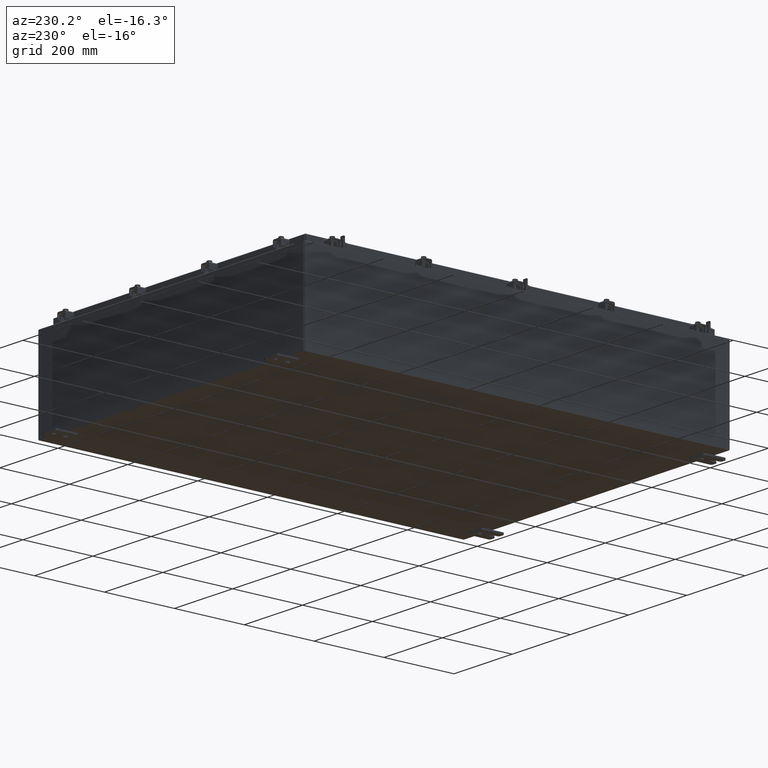
[diagram: clean part render]
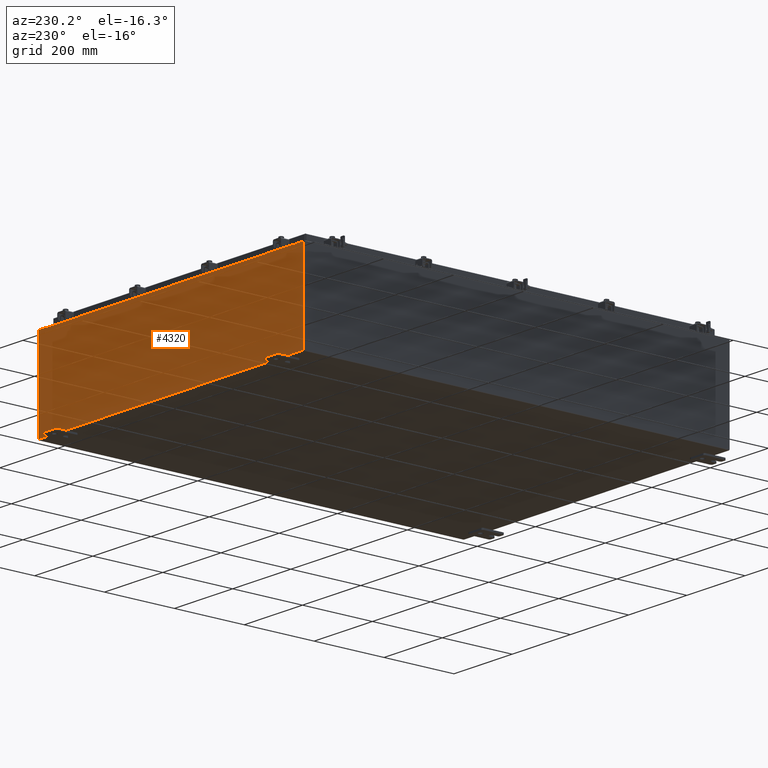
[diagram: same view with one face highlighted and labeled with its STEP entity id]
A machine part, auxiliary view. The second image highlights one B-rep face of the part: STEP entity #4320.
In plain terms, the highlighted planar face has unit normal (0, -1, 0).
Its self-contained STEP definition (entity closure, byte-faithful):
#90 = VERTEX_POINT ( 'NONE', #5222 ) ;
#235 = EDGE_LOOP ( 'NONE', ( #10161, #15801, #6835, #20614, #26888, #19884, #23600, #25094, #22514, #10881, #14825, #19794 ) ) ;
#618 = VECTOR ( 'NONE', #26644, 39.37007874015748100 ) ;
#906 = PLANE ( 'NONE',  #1491 ) ;
#1267 = LINE ( 'NONE', #9613, #618 ) ;
#1491 = AXIS2_PLACEMENT_3D ( 'NONE', #7310, #26489, #13730 ) ;
#1531 = CARTESIAN_POINT ( 'NONE',  ( -16.65587500000000200, 0.0000000000000000000, 4.874950000000000100 ) ) ;
#1675 = CARTESIAN_POINT ( 'NONE',  ( 17.92530000000000000, 0.0000000000000000000, 4.925300000000000000 ) ) ;
#1688 = DIRECTION ( 'NONE',  ( -0.0000000000000000000, 1.000000000000000000, -0.0000000000000000000 ) ) ;
#1728 = VERTEX_POINT ( 'NONE', #18785 ) ;
#1968 = VECTOR ( 'NONE', #12387, 39.37007874015748100 ) ;
#2018 = LINE ( 'NONE', #13625, #24023 ) ;
#2198 = CARTESIAN_POINT ( 'NONE',  ( -16.63720000000000400, -7.171100983368691200E-016, 4.912300000000000100 ) ) ;
#2223 = CARTESIAN_POINT ( 'NONE',  ( -17.92530000000000000, 0.0000000000000000000, 4.925300000000000000 ) ) ;
#2234 = CARTESIAN_POINT ( 'NONE',  ( 16.63720000000000400, 0.0000000000000000000, 0.0000000000000000000 ) ) ;
#2359 = VECTOR ( 'NONE', #19620, 39.37007874015748100 ) ;
#2671 = CARTESIAN_POINT ( 'NONE',  ( -17.92530000000000000, 0.0000000000000000000, 4.925300000000000000 ) ) ;
#3654 = DIRECTION ( 'NONE',  ( 0.0000000000000000000, 0.0000000000000000000, -1.000000000000000000 ) ) ;
#3800 = VERTEX_POINT ( 'NONE', #20738 ) ;
#3846 = LINE ( 'NONE', #24524, #25863 ) ;
#3941 = CIRCLE ( 'NONE', #8643, 0.01867499999999949400 ) ;
#4019 = EDGE_CURVE ( 'NONE', #27526, #12675, #18448, .T. ) ;
#4320 = ADVANCED_FACE ( 'NONE', ( #27420 ), #906, .F. ) ;
#4369 = DIRECTION ( 'NONE',  ( 0.0000000000000000000, 0.0000000000000000000, 1.000000000000000000 ) ) ;
#4487 = CARTESIAN_POINT ( 'NONE',  ( 16.67455000000000000, 0.0000000000000000000, 4.874950000000000100 ) ) ;
#5222 = CARTESIAN_POINT ( 'NONE',  ( 17.92530000000000000, 0.0000000000000000000, -4.925300000000000000 ) ) ;
#5306 = EDGE_CURVE ( 'NONE', #10961, #1728, #26367, .T. ) ;
#6811 = CARTESIAN_POINT ( 'NONE',  ( -16.63720000000000400, -0.0000000000000000000, 4.874950000000000100 ) ) ;
#6835 = ORIENTED_EDGE ( 'NONE', *, *, #21192, .F. ) ;
#7079 = CARTESIAN_POINT ( 'NONE',  ( -17.92530000000000000, 0.0000000000000000000, -4.925300000000000000 ) ) ;
#7258 = EDGE_CURVE ( 'NONE', #10017, #15563, #25839, .T. ) ;
#7310 = CARTESIAN_POINT ( 'NONE',  ( 0.0000000000000000000, 0.0000000000000000000, 0.0000000000000000000 ) ) ;
#7657 = EDGE_CURVE ( 'NONE', #9957, #10017, #17140, .T. ) ;
#7842 = VECTOR ( 'NONE', #21999, 39.37007874015748100 ) ;
#8298 = LINE ( 'NONE', #1675, #1968 ) ;
#8643 = AXIS2_PLACEMENT_3D ( 'NONE', #1531, #16415, #3654 ) ;
#9217 = VERTEX_POINT ( 'NONE', #20790 ) ;
#9613 = CARTESIAN_POINT ( 'NONE',  ( -16.63720000000000400, -0.0000000000000000000, 0.0000000000000000000 ) ) ;
#9957 = VERTEX_POINT ( 'NONE', #19437 ) ;
#10003 = EDGE_CURVE ( 'NONE', #9217, #15563, #24369, .T. ) ;
#10017 = VERTEX_POINT ( 'NONE', #2671 ) ;
#10161 = ORIENTED_EDGE ( 'NONE', *, *, #10003, .F. ) ;
#10613 = CARTESIAN_POINT ( 'NONE',  ( -16.63720000000000400, -7.171100983368691200E-016, 4.912300000000000100 ) ) ;
#10881 = ORIENTED_EDGE ( 'NONE', *, *, #13703, .T. ) ;
#10961 = VERTEX_POINT ( 'NONE', #4487 ) ;
#11118 = CARTESIAN_POINT ( 'NONE',  ( -17.92530000000000000, 0.0000000000000000000, 4.925300000000000000 ) ) ;
#11383 = EDGE_CURVE ( 'NONE', #3800, #90, #8298, .T. ) ;
#11754 = VERTEX_POINT ( 'NONE', #13585 ) ;
#12148 = CARTESIAN_POINT ( 'NONE',  ( 16.63720000000000400, 0.0000000000000000000, 4.912300000000000100 ) ) ;
#12387 = DIRECTION ( 'NONE',  ( 0.0000000000000000000, 0.0000000000000000000, -1.000000000000000000 ) ) ;
#12656 = EDGE_CURVE ( 'NONE', #14039, #9217, #3941, .T. ) ;
#12675 = VERTEX_POINT ( 'NONE', #12148 ) ;
#12823 = DIRECTION ( 'NONE',  ( 1.000000000000000000, 0.0000000000000000000, 0.0000000000000000000 ) ) ;
#13159 = VECTOR ( 'NONE', #21822, 39.37007874015748100 ) ;
#13292 = CARTESIAN_POINT ( 'NONE',  ( -16.67455000000000000, -0.0000000000000000000, 0.0000000000000000000 ) ) ;
#13334 = EDGE_CURVE ( 'NONE', #11754, #3800, #3846, .T. ) ;
#13509 = LINE ( 'NONE', #7079, #7842 ) ;
#13585 = CARTESIAN_POINT ( 'NONE',  ( 16.67455000000000700, 0.0000000000000000000, 4.925300000000000000 ) ) ;
#13625 = CARTESIAN_POINT ( 'NONE',  ( 16.67454999999957700, -0.0000000000000000000, -1.447541957108341500E-012 ) ) ;
#13660 = EDGE_CURVE ( 'NONE', #1728, #12675, #21860, .T. ) ;
#13703 = EDGE_CURVE ( 'NONE', #90, #9957, #13509, .T. ) ;
#13712 = DIRECTION ( 'NONE',  ( -8.681145560800009800E-014, 0.0000000000000000000, -1.000000000000000000 ) ) ;
#13730 = DIRECTION ( 'NONE',  ( 0.0000000000000000000, -0.0000000000000000000, -1.000000000000000000 ) ) ;
#14039 = VERTEX_POINT ( 'NONE', #6811 ) ;
#14448 = CARTESIAN_POINT ( 'NONE',  ( 16.65587500000000200, 0.0000000000000000000, 4.874950000000000100 ) ) ;
#14482 = CARTESIAN_POINT ( 'NONE',  ( -16.67455000000000000, 0.0000000000000000000, 4.925300000000000000 ) ) ;
#14825 = ORIENTED_EDGE ( 'NONE', *, *, #7657, .T. ) ;
#15563 = VERTEX_POINT ( 'NONE', #14482 ) ;
#15801 = ORIENTED_EDGE ( 'NONE', *, *, #12656, .F. ) ;
#16415 = DIRECTION ( 'NONE',  ( -0.0000000000000000000, 1.000000000000000000, -0.0000000000000000000 ) ) ;
#16463 = VECTOR ( 'NONE', #21420, 39.37007874015748100 ) ;
#16585 = DIRECTION ( 'NONE',  ( 0.0000000000000000000, 0.0000000000000000000, -1.000000000000000000 ) ) ;
#17140 = LINE ( 'NONE', #2223, #16463 ) ;
#17827 = EDGE_CURVE ( 'NONE', #11754, #10961, #2018, .T. ) ;
#18448 = LINE ( 'NONE', #2198, #22126 ) ;
#18785 = CARTESIAN_POINT ( 'NONE',  ( 16.63720000000000400, 0.0000000000000000000, 4.874950000000000100 ) ) ;
#19437 = CARTESIAN_POINT ( 'NONE',  ( -17.92530000000000000, 0.0000000000000000000, -4.925300000000000000 ) ) ;
#19620 = DIRECTION ( 'NONE',  ( 0.0000000000000000000, 0.0000000000000000000, 1.000000000000000000 ) ) ;
#19794 = ORIENTED_EDGE ( 'NONE', *, *, #7258, .T. ) ;
#19884 = ORIENTED_EDGE ( 'NONE', *, *, #5306, .F. ) ;
#20514 = VECTOR ( 'NONE', #4369, 39.37007874015748100 ) ;
#20614 = ORIENTED_EDGE ( 'NONE', *, *, #4019, .T. ) ;
#20738 = CARTESIAN_POINT ( 'NONE',  ( 17.92530000000000000, 0.0000000000000000000, 4.925300000000000000 ) ) ;
#20790 = CARTESIAN_POINT ( 'NONE',  ( -16.67455000000000000, 0.0000000000000000000, 4.874950000000000100 ) ) ;
#21192 = EDGE_CURVE ( 'NONE', #27526, #14039, #1267, .T. ) ;
#21420 = DIRECTION ( 'NONE',  ( -0.0000000000000000000, -0.0000000000000000000, 1.000000000000000000 ) ) ;
#21822 = DIRECTION ( 'NONE',  ( 1.000000000000000000, 0.0000000000000000000, 0.0000000000000000000 ) ) ;
#21860 = LINE ( 'NONE', #2234, #20514 ) ;
#21999 = DIRECTION ( 'NONE',  ( -1.000000000000000000, -0.0000000000000000000, -0.0000000000000000000 ) ) ;
#22126 = VECTOR ( 'NONE', #12823, 39.37007874015748100 ) ;
#22386 = DIRECTION ( 'NONE',  ( 1.000000000000000000, 0.0000000000000000000, 0.0000000000000000000 ) ) ;
#22514 = ORIENTED_EDGE ( 'NONE', *, *, #11383, .T. ) ;
#23600 = ORIENTED_EDGE ( 'NONE', *, *, #17827, .F. ) ;
#24023 = VECTOR ( 'NONE', #13712, 39.37007874015748100 ) ;
#24369 = LINE ( 'NONE', #13292, #2359 ) ;
#24524 = CARTESIAN_POINT ( 'NONE',  ( -17.92530000000000000, 0.0000000000000000000, 4.925300000000000000 ) ) ;
#25094 = ORIENTED_EDGE ( 'NONE', *, *, #13334, .T. ) ;
#25839 = LINE ( 'NONE', #11118, #13159 ) ;
#25863 = VECTOR ( 'NONE', #22386, 39.37007874015748100 ) ;
#26367 = CIRCLE ( 'NONE', #27566, 0.01867499999999949400 ) ;
#26489 = DIRECTION ( 'NONE',  ( 0.0000000000000000000, -1.000000000000000000, 0.0000000000000000000 ) ) ;
#26644 = DIRECTION ( 'NONE',  ( 0.0000000000000000000, 0.0000000000000000000, -1.000000000000000000 ) ) ;
#26888 = ORIENTED_EDGE ( 'NONE', *, *, #13660, .F. ) ;
#27420 = FACE_OUTER_BOUND ( 'NONE', #235, .T. ) ;
#27526 = VERTEX_POINT ( 'NONE', #10613 ) ;
#27566 = AXIS2_PLACEMENT_3D ( 'NONE', #14448, #1688, #16585 ) ;